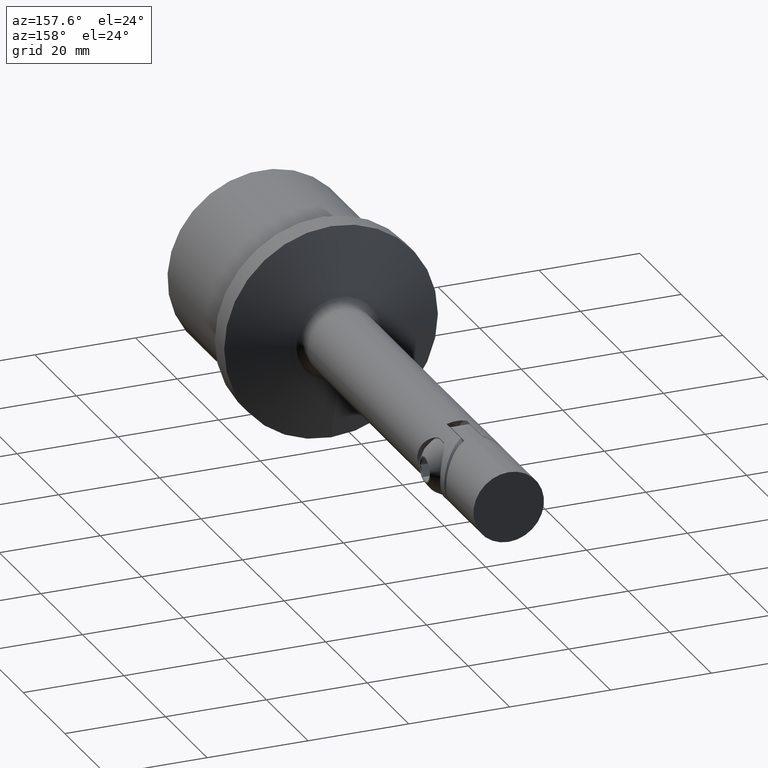
[diagram: clean part render]
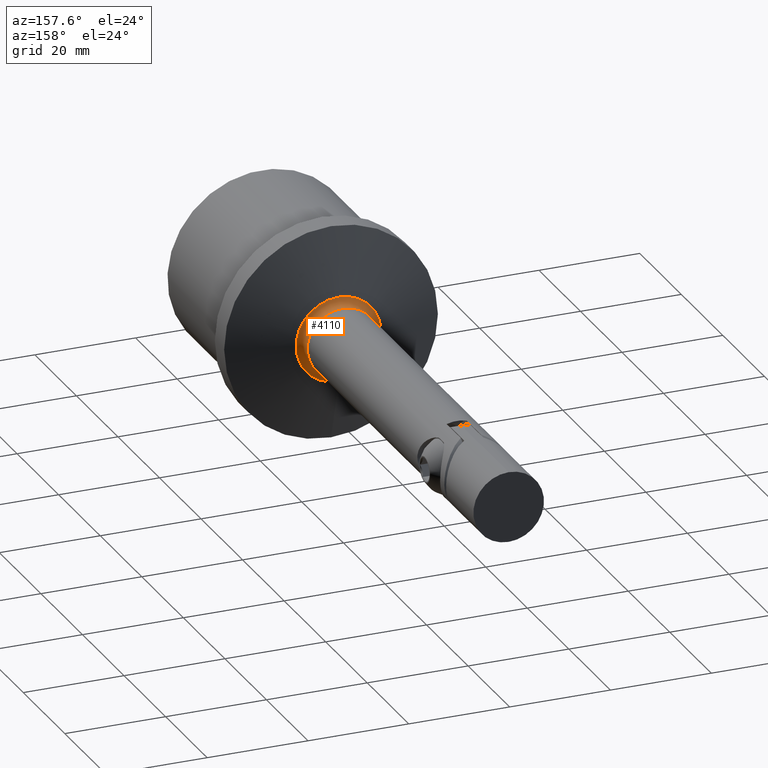
[diagram: same view with one face highlighted and labeled with its STEP entity id]
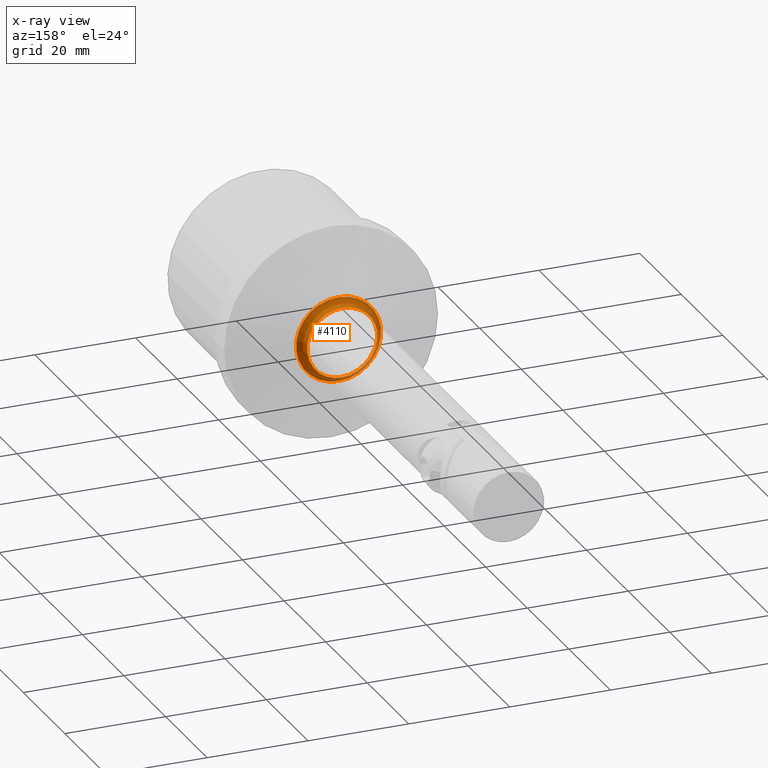
[diagram: x-ray of the same camera — body ghosted, the highlighted face saturated]
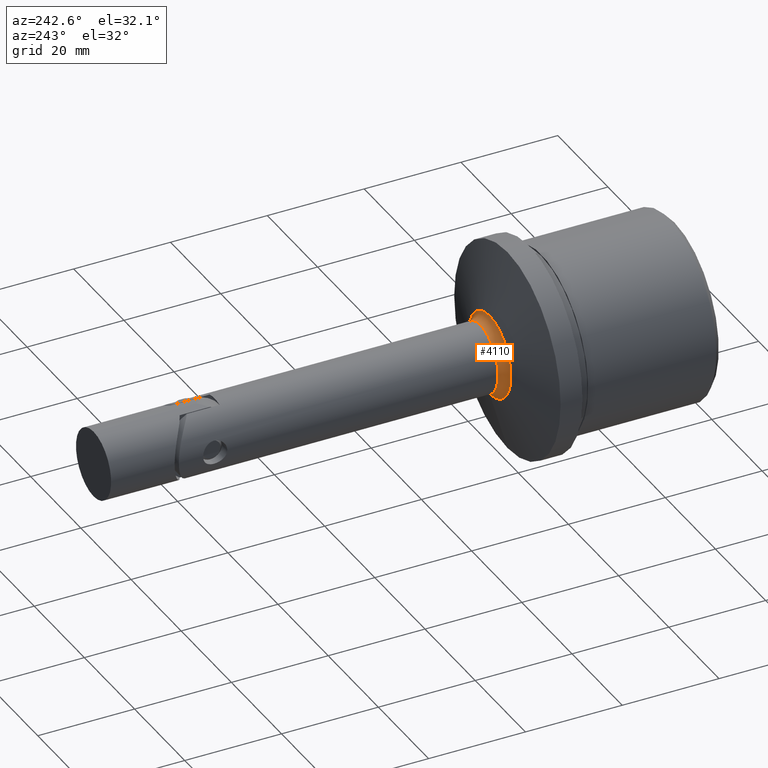
[diagram: same view with one face highlighted and labeled with its STEP entity id]
A machine part, auxiliary view. The second image highlights one B-rep face of the part: STEP entity #4110.
The next image is the same camera in x-ray: the body ghosted, the highlighted face saturated — about 14% of this face is hidden behind the body in this view.
A second angle (auxiliary view) of the same face is appended — the face is thin or edge-on in the first view.
In plain terms, the highlighted toroidal blend (fillet) surface has major radius 9 mm and minor (blend) radius 2 mm.
Its self-contained STEP definition (entity closure, byte-faithful):
#504 = DIRECTION ( 'NONE',  ( -0.000000000000000000, -1.000000000000000000, -0.000000000000000000 ) ) ;
#990 = FACE_OUTER_BOUND ( 'NONE', #9219, .T. ) ;
#1096 = AXIS2_PLACEMENT_3D ( 'NONE', #13155, #504, #7831 ) ;
#1479 = CIRCLE ( 'NONE', #13539, 8.448725288365993791 ) ;
#1722 = CARTESIAN_POINT ( 'NONE',  ( 0.000000000000000000, 40.07889257798072435, 0.000000000000000000 ) ) ;
#2299 = CARTESIAN_POINT ( 'NONE',  ( 0.000000000000000000, 38.15636918610408657, 0.000000000000000000 ) ) ;
#2346 = ORIENTED_EDGE ( 'NONE', *, *, #10602, .T. ) ;
#2377 = CIRCLE ( 'NONE', #10360, 6.999999999999999112 ) ;
#2382 = DIRECTION ( 'NONE',  ( -0.000000000000000000, -1.000000000000000000, -0.000000000000000000 ) ) ;
#2806 = DIRECTION ( 'NONE',  ( 0.000000000000000000, 0.000000000000000000, -1.000000000000000000 ) ) ;
#3414 = EDGE_CURVE ( 'NONE', #11714, #11714, #1479, .T. ) ;
#3440 = DIRECTION ( 'NONE',  ( 0.000000000000000000, 0.000000000000000000, -1.000000000000000000 ) ) ;
#4110 = ADVANCED_FACE ( 'NONE', ( #6547, #990 ), #11871, .F. ) ;
#4384 = CARTESIAN_POINT ( 'NONE',  ( 0.000000000000000000, 40.07889257798072435, -6.999999999999999112 ) ) ;
#5137 = EDGE_LOOP ( 'NONE', ( #2346 ) ) ;
#5865 = DIRECTION ( 'NONE',  ( -0.000000000000000000, -1.000000000000000000, -0.000000000000000000 ) ) ;
#6547 = FACE_OUTER_BOUND ( 'NONE', #5137, .T. ) ;
#7831 = DIRECTION ( 'NONE',  ( 0.000000000000000000, 0.000000000000000000, -1.000000000000000000 ) ) ;
#8549 = CARTESIAN_POINT ( 'NONE',  ( 0.000000000000000000, 38.15636918610408657, -8.448725288365993791 ) ) ;
#9219 = EDGE_LOOP ( 'NONE', ( #11246 ) ) ;
#10360 = AXIS2_PLACEMENT_3D ( 'NONE', #1722, #5865, #2806 ) ;
#10602 = EDGE_CURVE ( 'NONE', #11203, #11203, #2377, .T. ) ;
#11203 = VERTEX_POINT ( 'NONE', #4384 ) ;
#11246 = ORIENTED_EDGE ( 'NONE', *, *, #3414, .F. ) ;
#11714 = VERTEX_POINT ( 'NONE', #8549 ) ;
#11871 = TOROIDAL_SURFACE ( 'NONE', #1096, 9.000000000000001776, 2.000000000000001776 ) ;
#13155 = CARTESIAN_POINT ( 'NONE',  ( 0.000000000000000000, 40.07889257798072435, 0.000000000000000000 ) ) ;
#13539 = AXIS2_PLACEMENT_3D ( 'NONE', #2299, #2382, #3440 ) ;